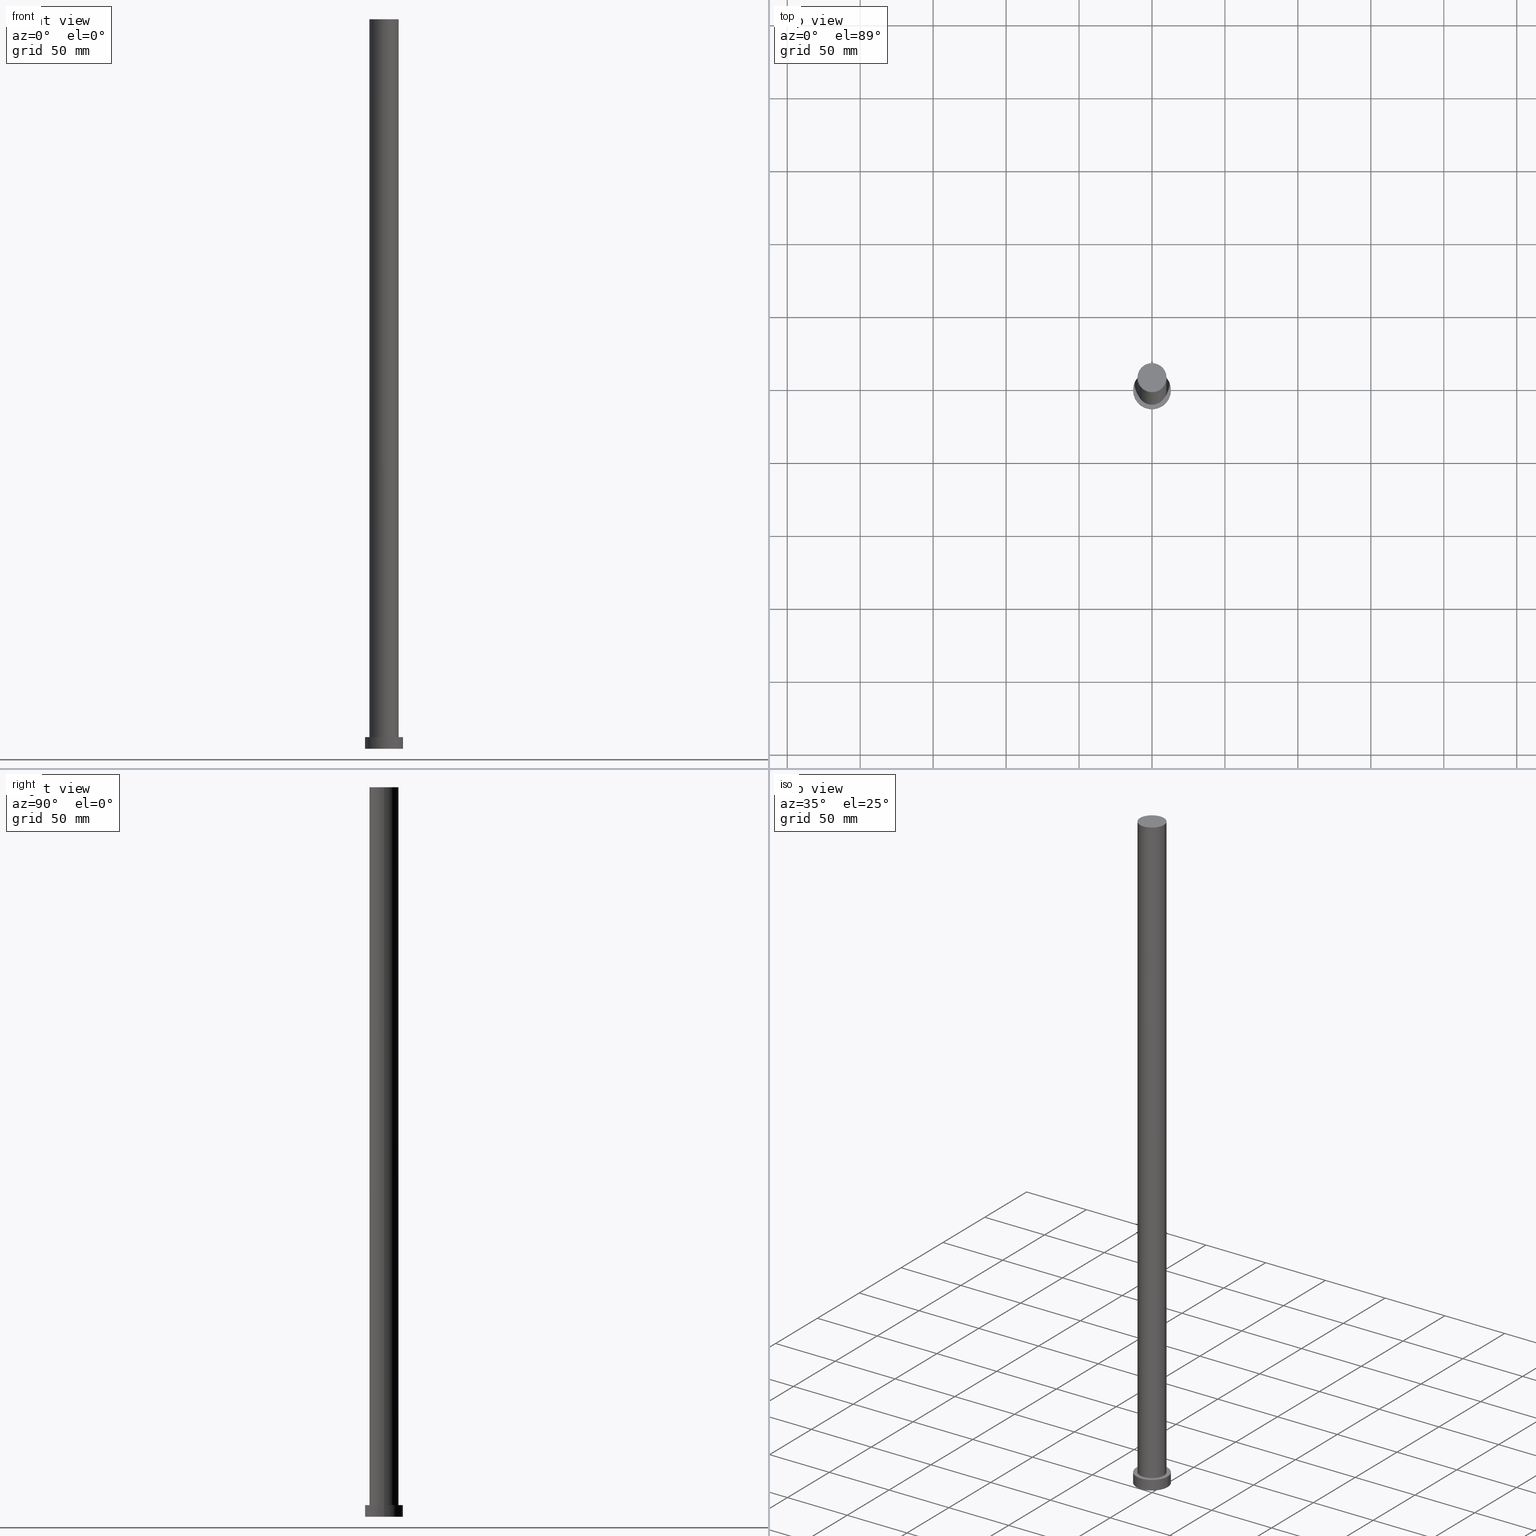
[diagram: canonical four-view strip — front | top / right | iso, engineering-drawing reading convention]
A machine part, canonical four-view strip (front | top / right | iso — engineering-drawing reading convention). The complete STEP part file that produces these views, byte-faithful:
ISO-10303-21;
HEADER;
FILE_DESCRIPTION (( 'STEP AP203' ),
    '1' );
FILE_NAME ('5a38.STEP',
    '2023-02-13T07:33:22',
    ( '' ),
    ( '' ),
    'SwSTEP 2.0',
    'SolidWorks 2019',
    '' );
FILE_SCHEMA (( 'CONFIG_CONTROL_DESIGN' ));
ENDSEC;

DATA;
#1 = PERSON_AND_ORGANIZATION_ROLE ( 'design_owner' ) ;
#2 = ORGANIZATION ( 'NEUR�EN�', 'NEUR�EN�', '' ) ;
#3 = PERSON_AND_ORGANIZATION ( #149, #2 ) ;
#4 = DATE_TIME_ROLE ( 'classification_date' ) ;
#5 = CARTESIAN_POINT ( 'NONE',  ( 0.000000000000000000, 0.000000000000000000, 8.000000000000000000 ) ) ;
#6 = PRODUCT_DEFINITION_FORMATION_WITH_SPECIFIED_SOURCE ( 'LIBOVOLN�', '', #42, .NOT_KNOWN. ) ;
#7 = CC_DESIGN_PERSON_AND_ORGANIZATION_ASSIGNMENT ( #154, #141, ( #6 ) ) ;
#8 = CALENDAR_DATE ( 2023, 13, 2 ) ;
#9 = EDGE_CURVE ( 'NONE', #82, #130, #204, .T. ) ;
#10 = DIRECTION ( 'NONE',  ( 1.000000000000000000, 0.000000000000000000, 0.000000000000000000 ) ) ;
#11 = PRODUCT_RELATED_PRODUCT_CATEGORY ( 'detail', '', ( #42 ) ) ;
#12 = CARTESIAN_POINT ( 'NONE',  ( 0.000000000000000000, 0.000000000000000000, 0.000000000000000000 ) ) ;
#13 = EDGE_LOOP ( 'NONE', ( #54, #173, #135, #235 ) ) ;
#14 = DIRECTION ( 'NONE',  ( -1.000000000000000000, 0.000000000000000000, 0.000000000000000000 ) ) ;
#15 = APPROVAL_PERSON_ORGANIZATION ( #163, #20, #145 ) ;
#16 = CC_DESIGN_PERSON_AND_ORGANIZATION_ASSIGNMENT ( #81, #215, ( #217 ) ) ;
#17 = COORDINATED_UNIVERSAL_TIME_OFFSET ( 1, 0, .AHEAD. ) ;
#18 = ORIENTED_EDGE ( 'NONE', *, *, #9, .F. ) ;
#19 = ORIENTED_EDGE ( 'NONE', *, *, #242, .T. ) ;
#20 = APPROVAL ( #70, 'NEUR�EN�' ) ;
#21 = CARTESIAN_POINT ( 'NONE',  ( 10.00000000000000000, 1.224646799147353256E-15, 8.000000000000000000 ) ) ;
#22 = CIRCLE ( 'NONE', #150, 13.00000000000000178 ) ;
#23 = CARTESIAN_POINT ( 'NONE',  ( -13.00000000000000178, 0.000000000000000000, 8.000000000000000000 ) ) ;
#24 = APPLICATION_PROTOCOL_DEFINITION ( 'international standard', 'config_control_design', 1994, #73 ) ;
#25 = MANIFOLD_SOLID_BREP ( 'P�idat vysunut�m3', #139 ) ;
#26 = DIRECTION ( 'NONE',  ( 1.000000000000000000, 0.000000000000000000, 0.000000000000000000 ) ) ;
#27 = ADVANCED_FACE ( 'NONE', ( #35 ), #166, .T. ) ;
#28 = APPROVAL_DATE_TIME ( #199, #20 ) ;
#29 = AXIS2_PLACEMENT_3D ( 'NONE', #212, #198, #43 ) ;
#30 = PERSON_AND_ORGANIZATION ( #149, #2 ) ;
#31 = EDGE_CURVE ( 'NONE', #191, #130, #246, .T. ) ;
#32 = DIRECTION ( 'NONE',  ( 1.000000000000000000, 0.000000000000000000, -0.000000000000000000 ) ) ;
#33 = AXIS2_PLACEMENT_3D ( 'NONE', #67, #234, #119 ) ;
#34 = ORIENTED_EDGE ( 'NONE', *, *, #106, .F. ) ;
#35 = FACE_OUTER_BOUND ( 'NONE', #192, .T. ) ;
#36 = EDGE_LOOP ( 'NONE', ( #205, #157 ) ) ;
#37 = PRODUCT_DEFINITION ( 'NEZN�M�', '', #6, #60 ) ;
#38 = CARTESIAN_POINT ( 'NONE',  ( 0.000000000000000000, 0.000000000000000000, 500.0000000000000000 ) ) ;
#39 = PERSON_AND_ORGANIZATION ( #149, #2 ) ;
#40 = APPROVAL_STATUS ( 'not_yet_approved' ) ;
#41 = EDGE_CURVE ( 'NONE', #191, #115, #53, .T. ) ;
#42 = PRODUCT ( '5a38', '5a38', '', ( #87 ) ) ;
#43 = DIRECTION ( 'NONE',  ( -1.000000000000000000, 0.000000000000000000, 0.000000000000000000 ) ) ;
#44 = EDGE_LOOP ( 'NONE', ( #19, #189 ) ) ;
#45 = CARTESIAN_POINT ( 'NONE',  ( -10.00000000000000000, 0.000000000000000000, 500.0000000000000000 ) ) ;
#46 = CARTESIAN_POINT ( 'NONE',  ( 0.000000000000000000, 0.000000000000000000, 500.0000000000000000 ) ) ;
#47 = APPROVAL_PERSON_ORGANIZATION ( #30, #56, #147 ) ;
#48 = DIRECTION ( 'NONE',  ( 1.000000000000000000, 0.000000000000000000, 0.000000000000000000 ) ) ;
#49 = COORDINATED_UNIVERSAL_TIME_OFFSET ( 1, 0, .AHEAD. ) ;
#50 = DATE_AND_TIME ( #222, #118 ) ;
#51 = VECTOR ( 'NONE', #97, 1000.000000000000000 ) ;
#52 = PERSON_AND_ORGANIZATION ( #149, #2 ) ;
#53 = CIRCLE ( 'NONE', #90, 13.00000000000000178 ) ;
#54 = ORIENTED_EDGE ( 'NONE', *, *, #244, .F. ) ;
#55 = CARTESIAN_POINT ( 'NONE',  ( -13.00000000000000178, 0.000000000000000000, 8.000000000000000000 ) ) ;
#56 = APPROVAL ( #202, 'NEUR�EN�' ) ;
#57 = CARTESIAN_POINT ( 'NONE',  ( 13.00000000000000178, 1.592040838891559293E-15, 0.000000000000000000 ) ) ;
#58 = VECTOR ( 'NONE', #131, 1000.000000000000000 ) ;
#59 = SECURITY_CLASSIFICATION_LEVEL ( 'unclassified' ) ;
#60 = DESIGN_CONTEXT ( 'detailed design', #241, 'design' ) ;
#61 = ADVANCED_FACE ( 'NONE', ( #203 ), #187, .T. ) ;
#62 = VERTEX_POINT ( 'NONE', #94 ) ;
#63 = CYLINDRICAL_SURFACE ( 'NONE', #29, 13.00000000000000178 ) ;
#64 = ORIENTED_EDGE ( 'NONE', *, *, #239, .F. ) ;
#65 = FACE_OUTER_BOUND ( 'NONE', #188, .T. ) ;
#66 = DIRECTION ( 'NONE',  ( 0.000000000000000000, 0.000000000000000000, 1.000000000000000000 ) ) ;
#67 = CARTESIAN_POINT ( 'NONE',  ( 0.000000000000000000, 0.000000000000000000, 8.000000000000000000 ) ) ;
#68 =( NAMED_UNIT ( * ) PLANE_ANGLE_UNIT ( ) SI_UNIT ( $, .RADIAN. ) );
#69 = ADVANCED_FACE ( 'NONE', ( #92, #134 ), #76, .T. ) ;
#70 = APPROVAL_STATUS ( 'not_yet_approved' ) ;
#71 = ADVANCED_BREP_SHAPE_REPRESENTATION ( '5a38', ( #25, #243 ), #152 ) ;
#72 = CC_DESIGN_PERSON_AND_ORGANIZATION_ASSIGNMENT ( #220, #1, ( #42 ) ) ;
#73 = APPLICATION_CONTEXT ( 'configuration controlled 3d designs of mechanical parts and assemblies' ) ;
#74 = CARTESIAN_POINT ( 'NONE',  ( 0.000000000000000000, 0.000000000000000000, 500.0000000000000000 ) ) ;
#75 = CC_DESIGN_APPROVAL ( #56, ( #6 ) ) ;
#76 = PLANE ( 'NONE',  #107 ) ;
#77 = LINE ( 'NONE', #129, #93 ) ;
#78 = ORIENTED_EDGE ( 'NONE', *, *, #106, .T. ) ;
#79 = AXIS2_PLACEMENT_3D ( 'NONE', #142, #103, #48 ) ;
#80 = CARTESIAN_POINT ( 'NONE',  ( 0.000000000000000000, 0.000000000000000000, 0.000000000000000000 ) ) ;
#81 = PERSON_AND_ORGANIZATION ( #149, #2 ) ;
#82 = VERTEX_POINT ( 'NONE', #57 ) ;
#83 = CARTESIAN_POINT ( 'NONE',  ( 0.000000000000000000, 0.000000000000000000, 8.000000000000000000 ) ) ;
#84 = DATE_AND_TIME ( #210, #248 ) ;
#85 = APPLICATION_PROTOCOL_DEFINITION ( 'international standard', 'config_control_design', 1994, #241 ) ;
#86 = AXIS2_PLACEMENT_3D ( 'NONE', #197, #253, #140 ) ;
#87 = MECHANICAL_CONTEXT ( 'NONE', #73, 'mechanical' ) ;
#88 = DATE_AND_TIME ( #159, #123 ) ;
#89 = ADVANCED_FACE ( 'NONE', ( #111 ), #114, .T. ) ;
#90 = AXIS2_PLACEMENT_3D ( 'NONE', #165, #110, #127 ) ;
#91 = ORIENTED_EDGE ( 'NONE', *, *, #31, .T. ) ;
#92 = FACE_BOUND ( 'NONE', #36, .T. ) ;
#93 = VECTOR ( 'NONE', #108, 1000.000000000000000 ) ;
#94 = CARTESIAN_POINT ( 'NONE',  ( -10.00000000000000000, 0.000000000000000000, 8.000000000000000000 ) ) ;
#95 = VERTEX_POINT ( 'NONE', #208 ) ;
#96 = VECTOR ( 'NONE', #238, 1000.000000000000000 ) ;
#97 = DIRECTION ( 'NONE',  ( -0.000000000000000000, -0.000000000000000000, -1.000000000000000000 ) ) ;
#98 = PLANE ( 'NONE',  #86 ) ;
#99 = CC_DESIGN_PERSON_AND_ORGANIZATION_ASSIGNMENT ( #3, #240, ( #37 ) ) ;
#100 = DIRECTION ( 'NONE',  ( 0.000000000000000000, 0.000000000000000000, 1.000000000000000000 ) ) ;
#101 = AXIS2_PLACEMENT_3D ( 'NONE', #12, #225, #10 ) ;
#102 = AXIS2_PLACEMENT_3D ( 'NONE', #38, #172, #226 ) ;
#103 = DIRECTION ( 'NONE',  ( 0.000000000000000000, 0.000000000000000000, 1.000000000000000000 ) ) ;
#104 = CIRCLE ( 'NONE', #143, 13.00000000000000178 ) ;
#105 = CIRCLE ( 'NONE', #183, 10.00000000000000000 ) ;
#106 = EDGE_CURVE ( 'NONE', #116, #62, #77, .T. ) ;
#107 = AXIS2_PLACEMENT_3D ( 'NONE', #151, #153, #231 ) ;
#108 = DIRECTION ( 'NONE',  ( -0.000000000000000000, -0.000000000000000000, -1.000000000000000000 ) ) ;
#109 = EDGE_CURVE ( 'NONE', #62, #117, #252, .T. ) ;
#110 = DIRECTION ( 'NONE',  ( 0.000000000000000000, 0.000000000000000000, 1.000000000000000000 ) ) ;
#111 = FACE_OUTER_BOUND ( 'NONE', #44, .T. ) ;
#112 = CIRCLE ( 'NONE', #33, 10.00000000000000000 ) ;
#113 = APPROVAL_DATE_TIME ( #88, #221 ) ;
#114 = PLANE ( 'NONE',  #201 ) ;
#115 = VERTEX_POINT ( 'NONE', #255 ) ;
#116 = VERTEX_POINT ( 'NONE', #45 ) ;
#117 = VERTEX_POINT ( 'NONE', #21 ) ;
#118 = LOCAL_TIME ( 8, 33, 22.00000000000000000, #146 ) ;
#119 = DIRECTION ( 'NONE',  ( 1.000000000000000000, 0.000000000000000000, 0.000000000000000000 ) ) ;
#120 = PRODUCT_DEFINITION_SHAPE ( 'NONE', 'NONE',  #37 ) ;
#121 = CALENDAR_DATE ( 2023, 13, 2 ) ;
#122 = EDGE_CURVE ( 'NONE', #95, #117, #158, .T. ) ;
#123 = LOCAL_TIME ( 8, 33, 22.00000000000000000, #206 ) ;
#124 = DATE_TIME_ROLE ( 'creation_date' ) ;
#125 = COORDINATED_UNIVERSAL_TIME_OFFSET ( 1, 0, .AHEAD. ) ;
#126 = CC_DESIGN_DATE_AND_TIME_ASSIGNMENT ( #84, #4, ( #217 ) ) ;
#127 = DIRECTION ( 'NONE',  ( 1.000000000000000000, 0.000000000000000000, 0.000000000000000000 ) ) ;
#128 = CIRCLE ( 'NONE', #79, 10.00000000000000000 ) ;
#129 = CARTESIAN_POINT ( 'NONE',  ( -10.00000000000000000, 0.000000000000000000, 500.0000000000000000 ) ) ;
#130 = VERTEX_POINT ( 'NONE', #177 ) ;
#131 = DIRECTION ( 'NONE',  ( -0.000000000000000000, -0.000000000000000000, -1.000000000000000000 ) ) ;
#132 = ORIENTED_EDGE ( 'NONE', *, *, #122, .F. ) ;
#133 = APPROVAL_ROLE ( '' ) ;
#134 = FACE_OUTER_BOUND ( 'NONE', #176, .T. ) ;
#135 = ORIENTED_EDGE ( 'NONE', *, *, #9, .T. ) ;
#136 = ORIENTED_EDGE ( 'NONE', *, *, #122, .T. ) ;
#137 = DIRECTION ( 'NONE',  ( 0.000000000000000000, 0.000000000000000000, 1.000000000000000000 ) ) ;
#138 = ORIENTED_EDGE ( 'NONE', *, *, #41, .T. ) ;
#139 = CLOSED_SHELL ( 'NONE', ( #61, #223, #224, #69, #186, #27, #89 ) ) ;
#140 = DIRECTION ( 'NONE',  ( 1.000000000000000000, 0.000000000000000000, -0.000000000000000000 ) ) ;
#141 = PERSON_AND_ORGANIZATION_ROLE ( 'creator' ) ;
#142 = CARTESIAN_POINT ( 'NONE',  ( 0.000000000000000000, 0.000000000000000000, 500.0000000000000000 ) ) ;
#143 = AXIS2_PLACEMENT_3D ( 'NONE', #80, #137, #214 ) ;
#144 = FACE_OUTER_BOUND ( 'NONE', #13, .T. ) ;
#145 = APPROVAL_ROLE ( '' ) ;
#146 = COORDINATED_UNIVERSAL_TIME_OFFSET ( 1, 0, .AHEAD. ) ;
#147 = APPROVAL_ROLE ( '' ) ;
#148 = EDGE_CURVE ( 'NONE', #130, #82, #104, .T. ) ;
#149 = PERSON ( 'NEUR�EN�', 'NEUR�EN�', 'NEUR�EN�', ('NEUR�EN�'), ('NEUR�EN�'), ('NEUR�EN�') ) ;
#150 = AXIS2_PLACEMENT_3D ( 'NONE', #5, #216, #180 ) ;
#151 = CARTESIAN_POINT ( 'NONE',  ( 0.000000000000000000, 0.000000000000000000, 8.000000000000000000 ) ) ;
#152 =( GEOMETRIC_REPRESENTATION_CONTEXT ( 3 ) GLOBAL_UNCERTAINTY_ASSIGNED_CONTEXT ( ( #251 ) ) GLOBAL_UNIT_ASSIGNED_CONTEXT ( ( #195, #68, #162 ) ) REPRESENTATION_CONTEXT ( 'NONE', 'WORKASPACE' ) );
#153 = DIRECTION ( 'NONE',  ( 0.000000000000000000, 0.000000000000000000, 1.000000000000000000 ) ) ;
#154 = PERSON_AND_ORGANIZATION ( #149, #2 ) ;
#155 = CARTESIAN_POINT ( 'NONE',  ( 0.000000000000000000, 0.000000000000000000, 8.000000000000000000 ) ) ;
#156 = AXIS2_PLACEMENT_3D ( 'NONE', #155, #184, #193 ) ;
#157 = ORIENTED_EDGE ( 'NONE', *, *, #174, .F. ) ;
#158 = LINE ( 'NONE', #219, #51 ) ;
#159 = CALENDAR_DATE ( 2023, 13, 2 ) ;
#160 = DIRECTION ( 'NONE',  ( -1.000000000000000000, 0.000000000000000000, 0.000000000000000000 ) ) ;
#161 = DIRECTION ( 'NONE',  ( 1.000000000000000000, 0.000000000000000000, 0.000000000000000000 ) ) ;
#162 =( NAMED_UNIT ( * ) SI_UNIT ( $, .STERADIAN. ) SOLID_ANGLE_UNIT ( ) );
#163 = PERSON_AND_ORGANIZATION ( #149, #2 ) ;
#164 = DATE_AND_TIME ( #8, #182 ) ;
#165 = CARTESIAN_POINT ( 'NONE',  ( 0.000000000000000000, 0.000000000000000000, 8.000000000000000000 ) ) ;
#166 = CYLINDRICAL_SURFACE ( 'NONE', #102, 10.00000000000000000 ) ;
#167 = ORIENTED_EDGE ( 'NONE', *, *, #244, .T. ) ;
#168 = CC_DESIGN_PERSON_AND_ORGANIZATION_ASSIGNMENT ( #52, #181, ( #6 ) ) ;
#169 = APPROVAL_PERSON_ORGANIZATION ( #39, #221, #133 ) ;
#170 = ORIENTED_EDGE ( 'NONE', *, *, #174, .T. ) ;
#171 = CARTESIAN_POINT ( 'NONE',  ( 0.000000000000000000, 0.000000000000000000, 500.0000000000000000 ) ) ;
#172 = DIRECTION ( 'NONE',  ( -0.000000000000000000, -0.000000000000000000, -1.000000000000000000 ) ) ;
#173 = ORIENTED_EDGE ( 'NONE', *, *, #229, .T. ) ;
#174 = EDGE_CURVE ( 'NONE', #117, #62, #112, .T. ) ;
#175 = DIRECTION ( 'NONE',  ( -0.000000000000000000, -0.000000000000000000, -1.000000000000000000 ) ) ;
#176 = EDGE_LOOP ( 'NONE', ( #138, #167 ) ) ;
#177 = CARTESIAN_POINT ( 'NONE',  ( -13.00000000000000178, 0.000000000000000000, 0.000000000000000000 ) ) ;
#178 = CARTESIAN_POINT ( 'NONE',  ( 0.000000000000000000, 0.000000000000000000, 0.000000000000000000 ) ) ;
#179 = CYLINDRICAL_SURFACE ( 'NONE', #207, 13.00000000000000178 ) ;
#180 = DIRECTION ( 'NONE',  ( 1.000000000000000000, 0.000000000000000000, 0.000000000000000000 ) ) ;
#181 = PERSON_AND_ORGANIZATION_ROLE ( 'design_supplier' ) ;
#182 = LOCAL_TIME ( 8, 33, 22.00000000000000000, #125 ) ;
#183 = AXIS2_PLACEMENT_3D ( 'NONE', #46, #66, #161 ) ;
#184 = DIRECTION ( 'NONE',  ( 0.000000000000000000, 0.000000000000000000, 1.000000000000000000 ) ) ;
#185 = ORIENTED_EDGE ( 'NONE', *, *, #109, .T. ) ;
#186 = ADVANCED_FACE ( 'NONE', ( #65 ), #98, .F. ) ;
#187 = CYLINDRICAL_SURFACE ( 'NONE', #233, 10.00000000000000000 ) ;
#188 = EDGE_LOOP ( 'NONE', ( #232, #18 ) ) ;
#189 = ORIENTED_EDGE ( 'NONE', *, *, #239, .T. ) ;
#190 = SHAPE_DEFINITION_REPRESENTATION ( #120, #71 ) ;
#191 = VERTEX_POINT ( 'NONE', #23 ) ;
#192 = EDGE_LOOP ( 'NONE', ( #132, #211, #78, #185 ) ) ;
#193 = DIRECTION ( 'NONE',  ( 1.000000000000000000, 0.000000000000000000, 0.000000000000000000 ) ) ;
#194 = CC_DESIGN_SECURITY_CLASSIFICATION ( #217, ( #6 ) ) ;
#195 =( LENGTH_UNIT ( ) NAMED_UNIT ( * ) SI_UNIT ( .MILLI., .METRE. ) );
#196 = LOCAL_TIME ( 8, 33, 22.00000000000000000, #49 ) ;
#197 = CARTESIAN_POINT ( 'NONE',  ( 0.000000000000000000, 0.000000000000000000, 0.000000000000000000 ) ) ;
#198 = DIRECTION ( 'NONE',  ( -0.000000000000000000, -0.000000000000000000, -1.000000000000000000 ) ) ;
#199 = DATE_AND_TIME ( #121, #196 ) ;
#200 = CC_DESIGN_APPROVAL ( #221, ( #217 ) ) ;
#201 = AXIS2_PLACEMENT_3D ( 'NONE', #171, #250, #32 ) ;
#202 = APPROVAL_STATUS ( 'not_yet_approved' ) ;
#203 = FACE_OUTER_BOUND ( 'NONE', #249, .T. ) ;
#204 = CIRCLE ( 'NONE', #101, 13.00000000000000178 ) ;
#205 = ORIENTED_EDGE ( 'NONE', *, *, #109, .F. ) ;
#206 = COORDINATED_UNIVERSAL_TIME_OFFSET ( 1, 0, .AHEAD. ) ;
#207 = AXIS2_PLACEMENT_3D ( 'NONE', #83, #175, #160 ) ;
#208 = CARTESIAN_POINT ( 'NONE',  ( 10.00000000000000000, 1.224646799147353256E-15, 500.0000000000000000 ) ) ;
#209 = ORIENTED_EDGE ( 'NONE', *, *, #229, .F. ) ;
#210 = CALENDAR_DATE ( 2023, 13, 2 ) ;
#211 = ORIENTED_EDGE ( 'NONE', *, *, #242, .F. ) ;
#212 = CARTESIAN_POINT ( 'NONE',  ( 0.000000000000000000, 0.000000000000000000, 8.000000000000000000 ) ) ;
#213 = ORIENTED_EDGE ( 'NONE', *, *, #41, .F. ) ;
#214 = DIRECTION ( 'NONE',  ( 1.000000000000000000, 0.000000000000000000, 0.000000000000000000 ) ) ;
#215 = PERSON_AND_ORGANIZATION_ROLE ( 'classification_officer' ) ;
#216 = DIRECTION ( 'NONE',  ( 0.000000000000000000, 0.000000000000000000, 1.000000000000000000 ) ) ;
#217 = SECURITY_CLASSIFICATION ( '', '', #59 ) ;
#218 = CC_DESIGN_DATE_AND_TIME_ASSIGNMENT ( #50, #124, ( #37 ) ) ;
#219 = CARTESIAN_POINT ( 'NONE',  ( 10.00000000000000000, 1.224646799147353256E-15, 500.0000000000000000 ) ) ;
#220 = PERSON_AND_ORGANIZATION ( #149, #2 ) ;
#221 = APPROVAL ( #40, 'NEUR�EN�' ) ;
#222 = CALENDAR_DATE ( 2023, 13, 2 ) ;
#223 = ADVANCED_FACE ( 'NONE', ( #144 ), #179, .T. ) ;
#224 = ADVANCED_FACE ( 'NONE', ( #237 ), #63, .T. ) ;
#225 = DIRECTION ( 'NONE',  ( 0.000000000000000000, 0.000000000000000000, 1.000000000000000000 ) ) ;
#226 = DIRECTION ( 'NONE',  ( -1.000000000000000000, 0.000000000000000000, 0.000000000000000000 ) ) ;
#227 = CC_DESIGN_APPROVAL ( #20, ( #37 ) ) ;
#228 = ORIENTED_EDGE ( 'NONE', *, *, #148, .T. ) ;
#229 = EDGE_CURVE ( 'NONE', #115, #82, #254, .T. ) ;
#230 = APPROVAL_DATE_TIME ( #164, #56 ) ;
#231 = DIRECTION ( 'NONE',  ( 1.000000000000000000, 0.000000000000000000, -0.000000000000000000 ) ) ;
#232 = ORIENTED_EDGE ( 'NONE', *, *, #148, .F. ) ;
#233 = AXIS2_PLACEMENT_3D ( 'NONE', #74, #245, #14 ) ;
#234 = DIRECTION ( 'NONE',  ( 0.000000000000000000, 0.000000000000000000, 1.000000000000000000 ) ) ;
#235 = ORIENTED_EDGE ( 'NONE', *, *, #31, .F. ) ;
#236 = CARTESIAN_POINT ( 'NONE',  ( 13.00000000000000178, 1.592040838891559293E-15, 8.000000000000000000 ) ) ;
#237 = FACE_OUTER_BOUND ( 'NONE', #247, .T. ) ;
#238 = DIRECTION ( 'NONE',  ( -0.000000000000000000, -0.000000000000000000, -1.000000000000000000 ) ) ;
#239 = EDGE_CURVE ( 'NONE', #95, #116, #105, .T. ) ;
#240 = PERSON_AND_ORGANIZATION_ROLE ( 'creator' ) ;
#241 = APPLICATION_CONTEXT ( 'configuration controlled 3d designs of mechanical parts and assemblies' ) ;
#242 = EDGE_CURVE ( 'NONE', #116, #95, #128, .T. ) ;
#243 = AXIS2_PLACEMENT_3D ( 'NONE', #178, #100, #26 ) ;
#244 = EDGE_CURVE ( 'NONE', #115, #191, #22, .T. ) ;
#245 = DIRECTION ( 'NONE',  ( -0.000000000000000000, -0.000000000000000000, -1.000000000000000000 ) ) ;
#246 = LINE ( 'NONE', #55, #58 ) ;
#247 = EDGE_LOOP ( 'NONE', ( #209, #213, #91, #228 ) ) ;
#248 = LOCAL_TIME ( 8, 33, 22.00000000000000000, #17 ) ;
#249 = EDGE_LOOP ( 'NONE', ( #64, #136, #170, #34 ) ) ;
#250 = DIRECTION ( 'NONE',  ( 0.000000000000000000, 0.000000000000000000, 1.000000000000000000 ) ) ;
#251 = UNCERTAINTY_MEASURE_WITH_UNIT (LENGTH_MEASURE( 1.000000000000000082E-05 ), #195, 'distance_accuracy_value', 'NONE');
#252 = CIRCLE ( 'NONE', #156, 10.00000000000000000 ) ;
#253 = DIRECTION ( 'NONE',  ( 0.000000000000000000, 0.000000000000000000, 1.000000000000000000 ) ) ;
#254 = LINE ( 'NONE', #236, #96 ) ;
#255 = CARTESIAN_POINT ( 'NONE',  ( 13.00000000000000178, 1.592040838891559293E-15, 8.000000000000000000 ) ) ;
ENDSEC;
END-ISO-10303-21;
